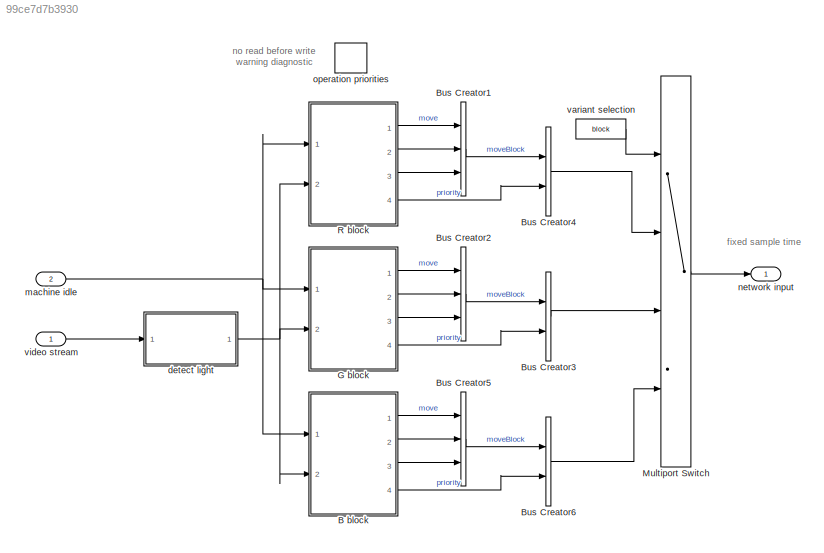
MODEL slx_99ce7d7b3930
KIND model
WORKSPACE source: MAT-file member
WORKSPACE block = 1
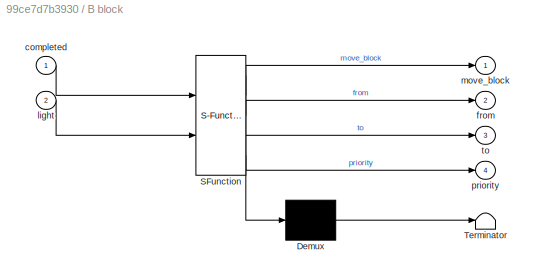
BLOCK [SubSystem] B block
  ErrorFcn = Stateflow.Translate.translate
  FunctionWithSeparateData = off
  MaskHideContents = off
  MinAlgLoopOccurrences = off
  Opaque = off
  PermitHierarchicalResolution = ExplicitOnly
  Ports = [2, 4]
  PropExecContextOutsideSubsystem = off
  RTWSystemCode = Auto
  RequestExecContextInheritance = off
  SFBlockType = Chart
  TreatAsAtomicUnit = on
BLOCK [Demux] B block/ Demux 
  Outputs = 1
  Ports = [1, 1]
BLOCK [S-Function] B block/ SFunction 
  EnableBusSupport = on
  FunctionName = sf_sfun
  PortCounts = [2 5]
  Ports = [2, 5]
  Tag = Stateflow S-Function cps_blocks_v1 1
BLOCK [Terminator] B block/ Terminator 
BLOCK [Inport] B block/completed
  IconDisplay = Port number
BLOCK [Outport] B block/from
  IconDisplay = Port number
  Port = 2
BLOCK [Inport] B block/light
  IconDisplay = Port number
  Port = 2
BLOCK [Outport] B block/move_block
  IconDisplay = Port number
BLOCK [Outport] B block/priority
  IconDisplay = Port number
  Port = 4
BLOCK [Outport] B block/to
  IconDisplay = Port number
  Port = 3
BLOCK [BusCreator] Bus Creator1
  DisplayOption = bar
  Inputs = 'move','from','to'
  OutDataTypeStr = Bus: slBusMoveBlock
  Ports = [3, 1]
BLOCK [BusCreator] Bus Creator2
  DisplayOption = bar
  Inputs = 'move','from','to'
  OutDataTypeStr = Bus: slBusMoveBlock
  Ports = [3, 1]
BLOCK [BusCreator] Bus Creator3
  DisplayOption = bar
  Inputs = 2
  OutDataTypeStr = Bus: slBusBlockOps
  Ports = [2, 1]
BLOCK [BusCreator] Bus Creator4
  DisplayOption = bar
  Inputs = 2
  OutDataTypeStr = Bus: slBusBlockOps
  Ports = [2, 1]
BLOCK [BusCreator] Bus Creator5
  DisplayOption = bar
  Inputs = 'move','from','to'
  OutDataTypeStr = Bus: slBusMoveBlock
  Ports = [3, 1]
BLOCK [BusCreator] Bus Creator6
  DisplayOption = bar
  Inputs = 2
  OutDataTypeStr = Bus: slBusBlockOps
  Ports = [2, 1]
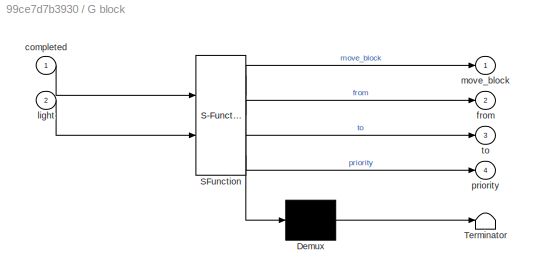
BLOCK [SubSystem] G block
  ErrorFcn = Stateflow.Translate.translate
  FunctionWithSeparateData = off
  MaskHideContents = off
  MinAlgLoopOccurrences = off
  Opaque = off
  PermitHierarchicalResolution = ExplicitOnly
  Ports = [2, 4]
  PropExecContextOutsideSubsystem = off
  RTWSystemCode = Auto
  RequestExecContextInheritance = off
  SFBlockType = Chart
  TreatAsAtomicUnit = on
BLOCK [Demux] G block/ Demux 
  Outputs = 1
  Ports = [1, 1]
BLOCK [S-Function] G block/ SFunction 
  EnableBusSupport = on
  FunctionName = sf_sfun
  PortCounts = [2 5]
  Ports = [2, 5]
  Tag = Stateflow S-Function cps_blocks_v1 2
BLOCK [Terminator] G block/ Terminator 
BLOCK [Inport] G block/completed
  IconDisplay = Port number
BLOCK [Outport] G block/from
  IconDisplay = Port number
  Port = 2
BLOCK [Inport] G block/light
  IconDisplay = Port number
  Port = 2
BLOCK [Outport] G block/move_block
  IconDisplay = Port number
BLOCK [Outport] G block/priority
  IconDisplay = Port number
  Port = 4
BLOCK [Outport] G block/to
  IconDisplay = Port number
  Port = 3
BLOCK [MultiPortSwitch] Multiport Switch
  InputSameDT = off
  Ports = [4, 1]
  SaturateOnIntegerOverflow = off
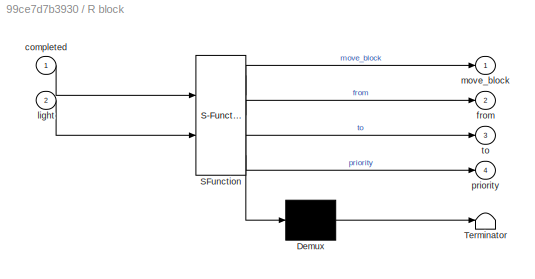
BLOCK [SubSystem] R block
  ErrorFcn = Stateflow.Translate.translate
  FunctionWithSeparateData = off
  MaskHideContents = off
  MinAlgLoopOccurrences = off
  Opaque = off
  PermitHierarchicalResolution = ExplicitOnly
  Ports = [2, 4]
  PropExecContextOutsideSubsystem = off
  RTWSystemCode = Auto
  RequestExecContextInheritance = off
  SFBlockType = Chart
  TreatAsAtomicUnit = on
BLOCK [Demux] R block/ Demux 
  Outputs = 1
  Ports = [1, 1]
BLOCK [S-Function] R block/ SFunction 
  EnableBusSupport = on
  FunctionName = sf_sfun
  PortCounts = [2 5]
  Ports = [2, 5]
  Tag = Stateflow S-Function cps_blocks_v1 3
BLOCK [Terminator] R block/ Terminator 
BLOCK [Inport] R block/completed
  IconDisplay = Port number
BLOCK [Outport] R block/from
  IconDisplay = Port number
  Port = 2
BLOCK [Inport] R block/light
  IconDisplay = Port number
  Port = 2
BLOCK [Outport] R block/move_block
  IconDisplay = Port number
BLOCK [Outport] R block/priority
  IconDisplay = Port number
  Port = 4
BLOCK [Outport] R block/to
  IconDisplay = Port number
  Port = 3
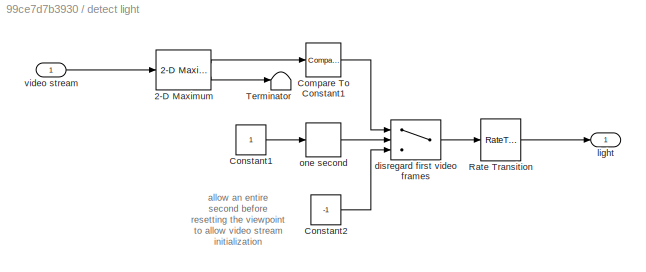
BLOCK [SubSystem] detect light
  FunctionWithSeparateData = off
  MaskHideContents = off
  MinAlgLoopOccurrences = off
  Opaque = off
  Ports = [1, 1]
  PropExecContextOutsideSubsystem = off
  RTWSystemCode = Auto
  RequestExecContextInheritance = off
BLOCK [Reference] detect light/2-D Maximum  REF=visionstatistics/2-D Maximum
  Dimension = 1
  InputProcessing = Elements as channels (sample based)
  LockScale = off
  Ports = [1, 2]
  SourceBlock = visionstatistics/2-D Maximum
  SourceType = 2-D Maximum
  UserDataPersistent = on
  accumDataTypeStr = Inherit: Same as product output
  accumFracLength = 30
  accumLastDataTypeStr = Inherit: Same as product output
  accumMode = Same as product output
  accumWordLength = 32
  additionalParams = off
  allowOverrides = on
  colComp = on
  fcn = Value and Index
  indexBase = One
  operateOver = Entire input
  operation = maximum
  overflowMode = off
  prodOutputDataTypeStr = Inherit: Same as input
  prodOutputFracLength = 30
  prodOutputLastDataTypeStr = Inherit: Same as input
  prodOutputMode = Same as input
  prodOutputWordLength = 32
  reset = None
  roiEnable = off
  roiFlag = off
  roiOutput = Individual statistics for each ROI
  roiPortion = Entire ROI
  roiType = Rectangles
  roundingMode = Floor
BLOCK [Reference] detect light/Compare To Constant1  REF=simulink/Logic and Bit
Operations/Compare
To Constant
  OutDataTypeStr = boolean
  Ports = [1, 1]
  SourceBlock = simulink/Logic and Bit\nOperations/Compare\nTo Constant
  SourceType = Compare To Constant
  ZeroCross = on
  const = 210
  relop = <
BLOCK [Constant] detect light/Constant1
BLOCK [Constant] detect light/Constant2
  Value = -1
BLOCK [RateTransition] detect light/Rate Transition
  Deterministic = off
BLOCK [Terminator] detect light/Terminator
BLOCK [Switch] detect light/disregard first video frames
  InputSameDT = off
  SaturateOnIntegerOverflow = off
  Threshold = 0.5
BLOCK [Outport] detect light/light
  IconDisplay = Port number
BLOCK [Delay] detect light/one second
  DelayLength = 11
  InputPortMap = u0
  Ports = [1, 1]
BLOCK [Inport] detect light/video stream
  IconDisplay = Port number
BLOCK [Inport] machine idle
  IconDisplay = Port number
  Port = 2
  SamplingMode = Sample based
  SignalType = real
BLOCK [Outport] network input
  BusOutputAsStruct = on
  IconDisplay = Port number
  OutDataTypeStr = Bus: slBusBlockOps
  SampleTime = 0.05
BLOCK [DataStoreMemory] operation priorities
  DataStoreName = PRI
  InitialValue = [0 1 2 3 4]
  OutDataTypeStr = int8
  SignalType = real
  WriteAfterReadMsg = warning
  WriteAfterWriteMsg = warning
BLOCK [Constant] variant selection
  Value = block
BLOCK [Inport] video stream
  IconDisplay = Port number
  OutDataTypeStr = uint8
  PortDimensions = [240 120 3]
  SampleTime = 0.1
  SamplingMode = Sample based
  SignalType = real
ANNOTATION (root): fixed sample time
ANNOTATION (root): no read before write warning diagnostic
ANNOTATION detect light: allow an entire second before resetting the viewpoint to allow video stream initialization
LINE B block:1 -> Bus Creator5:1
LINE B block:2 -> Bus Creator5:2
LINE B block:3 -> Bus Creator5:3
LINE B block:4 -> Bus Creator6:2
LINE Bus Creator1:1 -> Bus Creator4:1
LINE Bus Creator2:1 -> Bus Creator3:1
LINE Bus Creator3:1 -> Multiport Switch:3
LINE Bus Creator4:1 -> Multiport Switch:2
LINE Bus Creator5:1 -> Bus Creator6:1
LINE Bus Creator6:1 -> Multiport Switch:4
LINE G block:1 -> Bus Creator2:1
LINE G block:2 -> Bus Creator2:2
LINE G block:3 -> Bus Creator2:3
LINE G block:4 -> Bus Creator3:2
LINE Multiport Switch:1 -> network input:1
LINE R block:1 -> Bus Creator1:1
LINE R block:2 -> Bus Creator1:2
LINE R block:3 -> Bus Creator1:3
LINE R block:4 -> Bus Creator4:2
LINE detect light/2-D Maximum:1 -> detect light/Compare To Constant1:1
LINE detect light/2-D Maximum:2 -> detect light/Terminator:1
LINE detect light/Compare To Constant1:1 -> detect light/disregard first video frames:1
LINE detect light/Constant1:1 -> detect light/one second:1
LINE detect light/Constant2:1 -> detect light/disregard first video frames:3
LINE detect light/Rate Transition:1 -> detect light/light:1
LINE detect light/disregard first video frames:1 -> detect light/Rate Transition:1
LINE detect light/one second:1 -> detect light/disregard first video frames:2
LINE detect light/video stream:1 -> detect light/2-D Maximum:1
NET detect light:1 -> B block:2, G block:2, R block:2
NET machine idle:1 -> B block:1, G block:1, R block:1
LINE variant selection:1 -> Multiport Switch:1
LINE video stream:1 -> detect light:1
note: NET lines group one-source signal fan-out (src -> all destinations, sorted); 1:1 wires keep LINE
